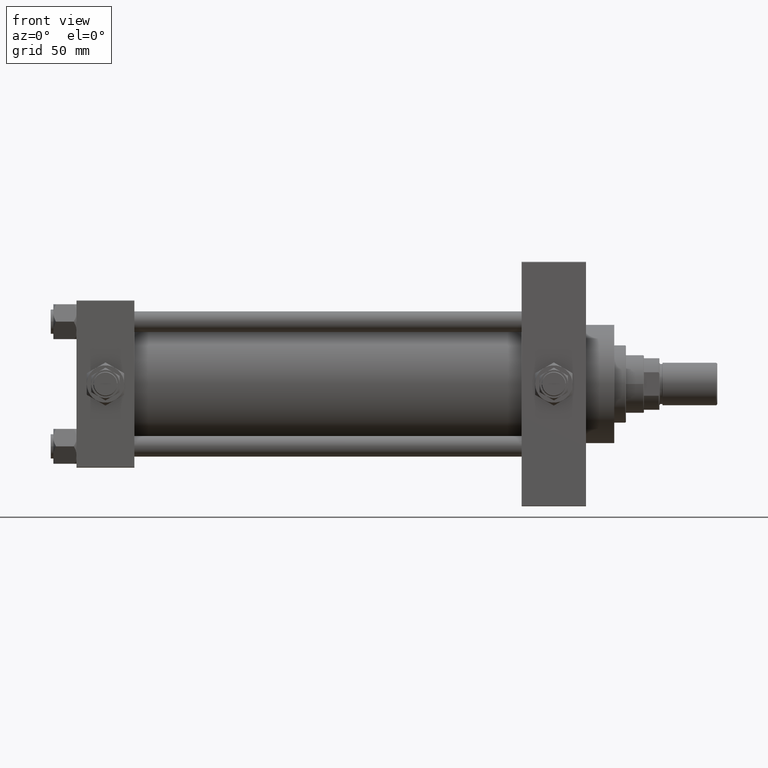
[diagram: clean part render]
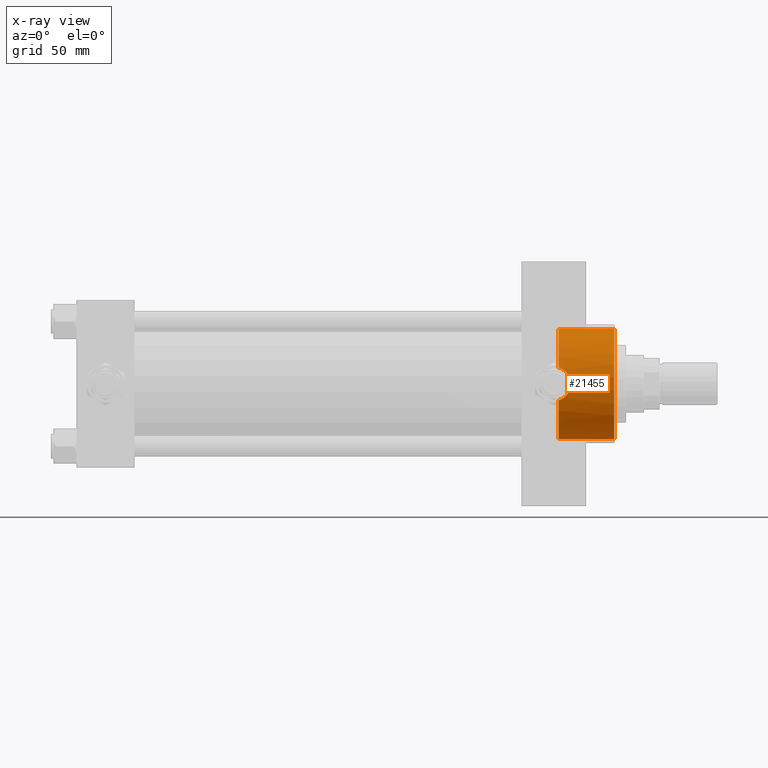
[diagram: x-ray — body ghosted, one internal face saturated and labeled with its STEP entity id]
A machine part, front view, then the same camera in x-ray: the body is ghosted and one INTERNAL B-rep face — a face not visible from any outside direction — is saturated and labeled: STEP entity #21455.
In plain terms, the highlighted cylindrical surface (partial cylindrical patch) has radius 42.75 mm, axis along (1, 0, 0).
Its self-contained STEP definition (entity closure, byte-faithful):
#422 = VERTEX_POINT ( 'NONE', #15115 ) ;
#1163 = AXIS2_PLACEMENT_3D ( 'NONE', #38633, #35563, #15275 ) ;
#1741 = CARTESIAN_POINT ( 'NONE',  ( 379.1188874313220367, -41.45647642344565753, -10.43915827880385727 ) ) ;
#2258 = CARTESIAN_POINT ( 'NONE',  ( 374.7399999999999523, 0.000000000000000000, 0.000000000000000000 ) ) ;
#2502 = CARTESIAN_POINT ( 'NONE',  ( 382.0065971449160998, -42.11617814458286091, 7.356591765198883692 ) ) ;
#2997 = CARTESIAN_POINT ( 'NONE',  ( 381.1459938556710654, -41.89947882874083263, -8.504551669291302574 ) ) ;
#3712 = EDGE_CURVE ( 'NONE', #6800, #8516, #29115, .T. ) ;
#4373 = CARTESIAN_POINT ( 'NONE',  ( 374.7399999999999523, 0.000000000000000000, -42.75000000000000000 ) ) ;
#5106 = ORIENTED_EDGE ( 'NONE', *, *, #3712, .T. ) ;
#5292 = CARTESIAN_POINT ( 'NONE',  ( 377.3542414019934768, -41.14336595071721803, -11.61405540322416030 ) ) ;
#5446 = VERTEX_POINT ( 'NONE', #46907 ) ;
#5805 = CARTESIAN_POINT ( 'NONE',  ( 379.9249778787972787, -41.62197581820227299, -9.758883457264611039 ) ) ;
#6800 = VERTEX_POINT ( 'NONE', #7853 ) ;
#6810 = CARTESIAN_POINT ( 'NONE',  ( 384.2064277639876195, -42.74579618513909907, 0.6981213961015202418 ) ) ;
#7853 = CARTESIAN_POINT ( 'NONE',  ( 418.0000000000000000, 5.235365066354935472E-15, 42.75000000000000000 ) ) ;
#8516 = VERTEX_POINT ( 'NONE', #28939 ) ;
#8883 = DIRECTION ( 'NONE',  ( 0.000000000000000000, 0.000000000000000000, -1.000000000000000000 ) ) ;
#8956 = ORIENTED_EDGE ( 'NONE', *, *, #37363, .F. ) ;
#10135 = CARTESIAN_POINT ( 'NONE',  ( 379.6796625534669829, -41.56787051534881527, 9.996256312412134193 ) ) ;
#10643 = CARTESIAN_POINT ( 'NONE',  ( 375.4270130609600642, -40.88917361113284699, 12.47729955562273574 ) ) ;
#11518 = CARTESIAN_POINT ( 'NONE',  ( 374.7399999999999523, 5.235365066354935472E-15, 42.75000000000000000 ) ) ;
#13004 = DIRECTION ( 'NONE',  ( 0.000000000000000000, 0.000000000000000000, -1.000000000000000000 ) ) ;
#13595 = ORIENTED_EDGE ( 'NONE', *, *, #34344, .F. ) ;
#13701 = CARTESIAN_POINT ( 'NONE',  ( 383.9894081557862933, -42.67922043224352535, -2.483804695984507482 ) ) ;
#13946 = CARTESIAN_POINT ( 'NONE',  ( 381.7830761643833171, -42.05979779156205467, -7.656286047219412971 ) ) ;
#14209 = DIRECTION ( 'NONE',  ( 0.000000000000000000, 0.000000000000000000, -1.000000000000000000 ) ) ;
#14438 = CARTESIAN_POINT ( 'NONE',  ( 383.3180906512883439, -42.47921328321764634, 4.851410986599757003 ) ) ;
#15115 = CARTESIAN_POINT ( 'NONE',  ( 374.7399999999999523, -40.82623788692757216, -12.67993690836037857 ) ) ;
#15275 = DIRECTION ( 'NONE',  ( 0.000000000000000000, 0.000000000000000000, -1.000000000000000000 ) ) ;
#15321 = EDGE_CURVE ( 'NONE', #422, #32767, #37474, .T. ) ;
#16337 = EDGE_LOOP ( 'NONE', ( #35956, #20028, #5106, #13595, #8956, #41977 ) ) ;
#16452 = VECTOR ( 'NONE', #27008, 1000.000000000000000 ) ;
#16504 = CARTESIAN_POINT ( 'NONE',  ( 418.0000000000000000, 0.000000000000000000, 0.000000000000000000 ) ) ;
#17764 = AXIS2_PLACEMENT_3D ( 'NONE', #16504, #20559, #8883 ) ;
#18004 = CARTESIAN_POINT ( 'NONE',  ( 381.9856094472934842, -42.11228528523243853, -7.362719038215892908 ) ) ;
#18246 = CARTESIAN_POINT ( 'NONE',  ( 379.1389740240204560, -41.45739201802922480, 10.44126992344761540 ) ) ;
#18498 = CARTESIAN_POINT ( 'NONE',  ( 384.1491276445504468, -42.72812791392466636, 1.413347075717691137 ) ) ;
#20028 = ORIENTED_EDGE ( 'NONE', *, *, #34255, .T. ) ;
#20559 = DIRECTION ( 'NONE',  ( 1.000000000000000000, 0.000000000000000000, 0.000000000000000000 ) ) ;
#20787 = CARTESIAN_POINT ( 'NONE',  ( 377.9623401956243356, -41.24246182355483370, -11.26040908465783197 ) ) ;
#21055 = CARTESIAN_POINT ( 'NONE',  ( 378.8355753955777345, -41.40179266465073482, -10.65353493722052391 ) ) ;
#21346 = VECTOR ( 'NONE', #40187, 1000.000000000000000 ) ;
#21455 = ADVANCED_FACE ( 'NONE', ( #40632 ), #22061, .F. ) ;
#21804 = CARTESIAN_POINT ( 'NONE',  ( 382.3632172565831979, -42.21236386932922358, -6.765392829973836619 ) ) ;
#22052 = CARTESIAN_POINT ( 'NONE',  ( 384.1610424353113444, -42.73166586794579302, -1.434504108584239601 ) ) ;
#22061 = CYLINDRICAL_SURFACE ( 'NONE', #25872, 42.75000000000000000 ) ;
#22295 = CARTESIAN_POINT ( 'NONE',  ( 384.2204402740230762, -42.75013615013602220, 0.3392730657541640493 ) ) ;
#24097 = CARTESIAN_POINT ( 'NONE',  ( 379.6630199548697533, -41.56646507779677790, -9.992219170631088332 ) ) ;
#24437 = LINE ( 'NONE', #4373, #21346 ) ;
#24610 = CARTESIAN_POINT ( 'NONE',  ( 375.4270925851358811, -40.88918089616407769, -12.47727609963711082 ) ) ;
#25133 = CARTESIAN_POINT ( 'NONE',  ( 374.7399999999999523, -40.82623788692757216, -12.67993690836037857 ) ) ;
#25468 = VERTEX_POINT ( 'NONE', #49508 ) ;
#25531 = CIRCLE ( 'NONE', #1163, 42.75000000000000000 ) ;
#25872 = AXIS2_PLACEMENT_3D ( 'NONE', #2258, #48494, #14209 ) ;
#25882 = CARTESIAN_POINT ( 'NONE',  ( 381.1624956355440190, -41.90350341365520848, 8.484592245230093255 ) ) ;
#27008 = DIRECTION ( 'NONE',  ( 1.000000000000000000, -0.000000000000000000, -0.000000000000000000 ) ) ;
#27059 = CARTESIAN_POINT ( 'NONE',  ( 374.7399999999999523, 0.000000000000000000, 0.000000000000000000 ) ) ;
#28939 = CARTESIAN_POINT ( 'NONE',  ( 418.0000000000000000, 0.000000000000000000, -42.75000000000000000 ) ) ;
#29115 = CIRCLE ( 'NONE', #17764, 42.75000000000000000 ) ;
#29189 = CARTESIAN_POINT ( 'NONE',  ( 383.7664851930732652, -42.61139927358283330, 3.505481660100324692 ) ) ;
#29434 = CARTESIAN_POINT ( 'NONE',  ( 383.0363689430457725, -42.39775029133585349, 5.512880659442467746 ) ) ;
#29887 = EDGE_CURVE ( 'NONE', #25468, #32767, #39118, .T. ) ;
#29942 = CARTESIAN_POINT ( 'NONE',  ( 382.5392672892634778, -42.26019519886383335, -6.460440162556765564 ) ) ;
#32767 = VERTEX_POINT ( 'NONE', #48733 ) ;
#33245 = CARTESIAN_POINT ( 'NONE',  ( 383.0298137930814732, -42.39589313351282840, -5.526869527314882902 ) ) ;
#33488 = CARTESIAN_POINT ( 'NONE',  ( 384.1061453106132717, -42.71489450414987488, 1.767314014186001536 ) ) ;
#33741 = CARTESIAN_POINT ( 'NONE',  ( 383.6458388575748018, -42.57581106965980666, -3.870036135680929412 ) ) ;
#33992 = CARTESIAN_POINT ( 'NONE',  ( 383.9355267676178300, -42.66274983104982965, 2.818638351193885949 ) ) ;
#34255 = EDGE_CURVE ( 'NONE', #25468, #6800, #46302, .T. ) ;
#34344 = EDGE_CURVE ( 'NONE', #5446, #8516, #24437, .T. ) ;
#35175 = DIRECTION ( 'NONE',  ( 1.000000000000000000, 0.000000000000000000, 0.000000000000000000 ) ) ;
#35563 = DIRECTION ( 'NONE',  ( 1.000000000000000000, 0.000000000000000000, 0.000000000000000000 ) ) ;
#35956 = ORIENTED_EDGE ( 'NONE', *, *, #29887, .F. ) ;
#37363 = EDGE_CURVE ( 'NONE', #422, #5446, #25531, .T. ) ;
#37474 = B_SPLINE_CURVE_WITH_KNOTS ( 'NONE', 3,
 ( #25133, #24610, #40357, #5292, #20787, #21055, #1741, #24097, #5805, #41118, #2997, #13946, #18004, #21804, #29942, #33245, #37805, #33741, #48483, #41610, #13701, #22052, #48735, #22295, #6810, #18498, #33488, #33992, #29189, #14438, #29434, #45421, #2502, #25882, #44911, #10135, #18246, #41369, #44665, #49227, #10643, #49492 ),
 .UNSPECIFIED., .F., .F.,
 ( 4, 2, 2, 2, 2, 2, 2, 2, 2, 2, 2, 2, 2, 2, 2, 2, 2, 2, 2, 2, 4 ),
 ( 0.000000000000000000, 0.002125631886811176798, 0.004251263773622353595, 0.005314079717027942427, 0.006376895660433531260, 0.008502527547244703721, 0.009565343490650288216, 0.01062815943405587618, 0.01275379132086705038, 0.01381660726427263834, 0.01487942320767822631, 0.01700505509448942826, 0.01806787103789503010, 0.01913068698130062500, 0.02125631886811180440, 0.02338195075492298033, 0.02550758264173415626, 0.02763321452854533566, 0.02975884641535650812, 0.03188447830216768752, 0.03401011018897886345 ),
 .UNSPECIFIED. ) ;
#37805 = CARTESIAN_POINT ( 'NONE',  ( 383.3069645189584094, -42.47597988253321688, -4.879662359427078044 ) ) ;
#38633 = CARTESIAN_POINT ( 'NONE',  ( 374.7399999999999523, 0.000000000000000000, 0.000000000000000000 ) ) ;
#39118 = CIRCLE ( 'NONE', #49682, 42.75000000000000000 ) ;
#40187 = DIRECTION ( 'NONE',  ( 1.000000000000000000, -0.000000000000000000, -0.000000000000000000 ) ) ;
#40357 = CARTESIAN_POINT ( 'NONE',  ( 376.0866117877859551, -40.96674013684115323, -12.22248122208931775 ) ) ;
#40632 = FACE_OUTER_BOUND ( 'NONE', #16337, .T. ) ;
#41118 = CARTESIAN_POINT ( 'NONE',  ( 380.6811910902558225, -41.78848794132223077, -9.029589412144876093 ) ) ;
#41369 = CARTESIAN_POINT ( 'NONE',  ( 377.9852428248123033, -41.24640677797845001, 11.24586139236918392 ) ) ;
#41610 = CARTESIAN_POINT ( 'NONE',  ( 383.9180342834379758, -42.65750819507707803, -2.832015403792543573 ) ) ;
#41977 = ORIENTED_EDGE ( 'NONE', *, *, #15321, .T. ) ;
#44665 = CARTESIAN_POINT ( 'NONE',  ( 377.3674952756207972, -41.14533651760915234, 11.60715841709173368 ) ) ;
#44911 = CARTESIAN_POINT ( 'NONE',  ( 380.6899591689121962, -41.79050880085014086, 9.020331125314230647 ) ) ;
#45421 = CARTESIAN_POINT ( 'NONE',  ( 382.3813469663714955, -42.21646729893780048, 6.762467872710390182 ) ) ;
#46302 = LINE ( 'NONE', #11518, #16452 ) ;
#46907 = CARTESIAN_POINT ( 'NONE',  ( 374.7399999999999523, 0.000000000000000000, -42.75000000000000000 ) ) ;
#48483 = CARTESIAN_POINT ( 'NONE',  ( 383.7463103793545542, -42.60581913250620545, -3.525264913244954279 ) ) ;
#48494 = DIRECTION ( 'NONE',  ( 1.000000000000000000, -0.000000000000000000, -0.000000000000000000 ) ) ;
#48733 = CARTESIAN_POINT ( 'NONE',  ( 374.7399999999999523, -40.82623788692757216, 12.67993690836038390 ) ) ;
#48735 = CARTESIAN_POINT ( 'NONE',  ( 384.2190876467556677, -42.74971786429957632, -0.7287734874664761886 ) ) ;
#49227 = CARTESIAN_POINT ( 'NONE',  ( 376.0894838391766370, -40.96701803660459262, 12.22163151364319411 ) ) ;
#49492 = CARTESIAN_POINT ( 'NONE',  ( 374.7399999999999523, -40.82623788692757216, 12.67993690836038390 ) ) ;
#49508 = CARTESIAN_POINT ( 'NONE',  ( 374.7399999999999523, 5.235365066354935472E-15, 42.75000000000000000 ) ) ;
#49682 = AXIS2_PLACEMENT_3D ( 'NONE', #27059, #35175, #13004 ) ;